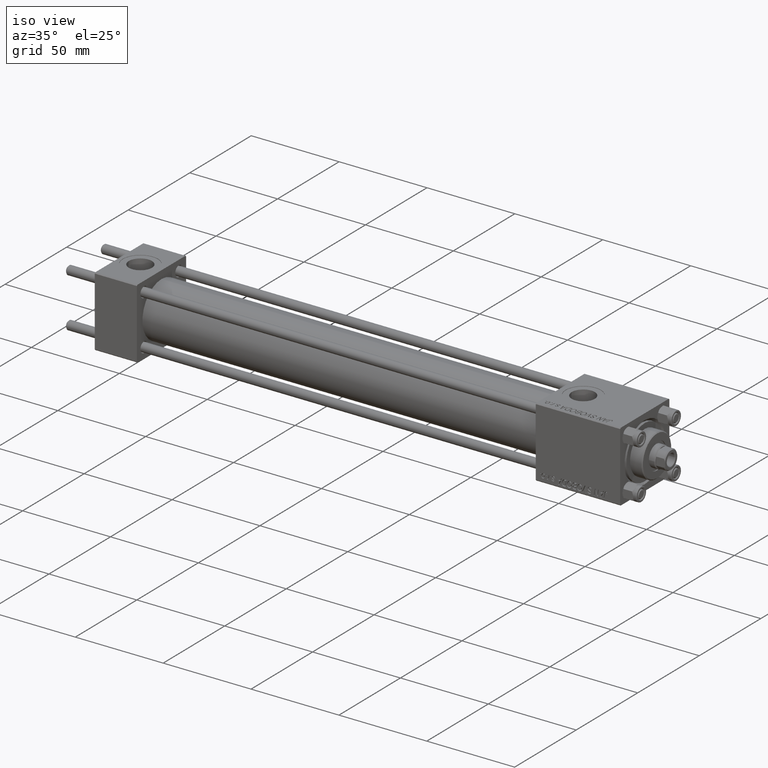
[diagram: clean part render]
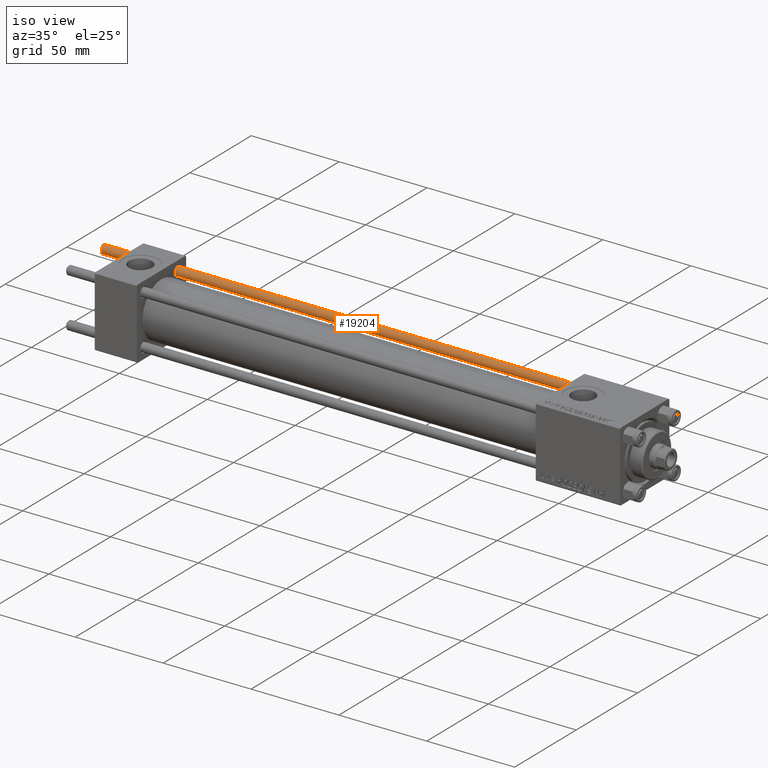
[diagram: same view with one face highlighted and labeled with its STEP entity id]
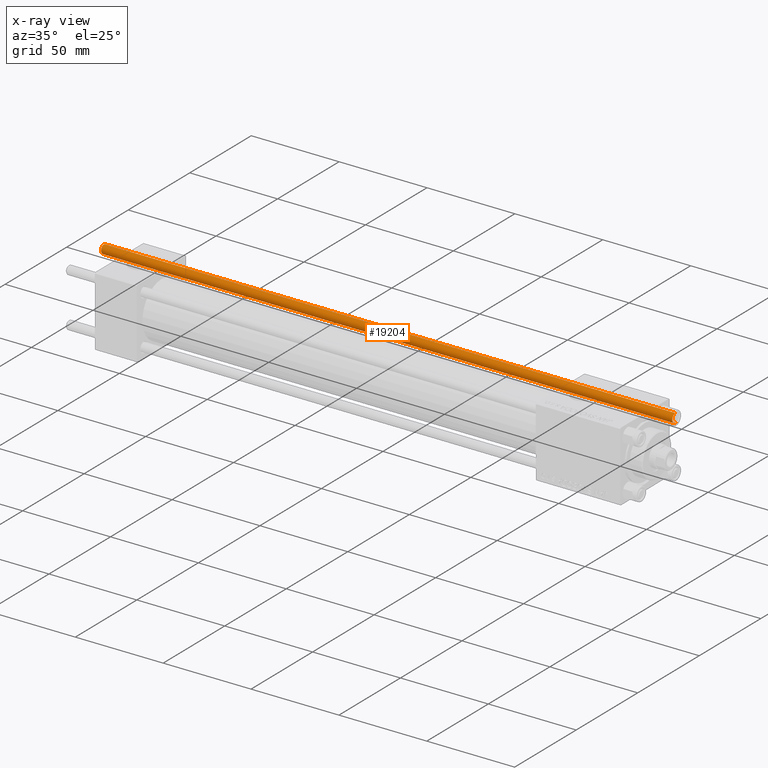
[diagram: x-ray of the same camera — body ghosted, the highlighted face saturated]
A machine part, iso view. The second image highlights one B-rep face of the part: STEP entity #19204.
The next image is the same camera in x-ray: the body ghosted, the highlighted face saturated — about 0% of this face is hidden behind the body in this view.
In plain terms, the highlighted cylindrical surface (edge-blend (fillet) strip) has radius 2.5 mm, axis along (-1, -0, -0).
Its self-contained STEP definition (entity closure, byte-faithful):
#3231 = CARTESIAN_POINT ( 'NONE',  ( 2.500000000000000000, 3.061616997868383141E-16, 0.4999999999999449329 ) ) ;
#7345 = CIRCLE ( 'NONE', #11634, 2.500000000000000000 ) ;
#9390 = DIRECTION ( 'NONE',  ( -0.000000000000000000, -0.000000000000000000, 1.000000000000000000 ) ) ;
#10185 = CARTESIAN_POINT ( 'NONE',  ( 0.000000000000000000, 0.000000000000000000, 0.4999999999999449329 ) ) ;
#10338 = VECTOR ( 'NONE', #19251, 1000.000000000000000 ) ;
#11634 = AXIS2_PLACEMENT_3D ( 'NONE', #10185, #9390, #25686 ) ;
#12517 = EDGE_CURVE ( 'NONE', #15682, #31487, #18698, .T. ) ;
#15682 = VERTEX_POINT ( 'NONE', #41688 ) ;
#16293 = AXIS2_PLACEMENT_3D ( 'NONE', #18193, #34216, #47017 ) ;
#18193 = CARTESIAN_POINT ( 'NONE',  ( 0.000000000000000000, 0.000000000000000000, 326.0000000000000000 ) ) ;
#18698 = CIRCLE ( 'NONE', #40868, 2.500000000000000000 ) ;
#19027 = ORIENTED_EDGE ( 'NONE', *, *, #51570, .F. ) ;
#19204 = ADVANCED_FACE ( 'NONE', ( #47280 ), #42212, .T. ) ;
#19251 = DIRECTION ( 'NONE',  ( -0.000000000000000000, -0.000000000000000000, -1.000000000000000000 ) ) ;
#21953 = DIRECTION ( 'NONE',  ( -0.000000000000000000, -0.000000000000000000, -1.000000000000000000 ) ) ;
#22748 = LINE ( 'NONE', #29689, #30382 ) ;
#24473 = CARTESIAN_POINT ( 'NONE',  ( 0.000000000000000000, 0.000000000000000000, 325.5000000000000000 ) ) ;
#25052 = ORIENTED_EDGE ( 'NONE', *, *, #51574, .T. ) ;
#25686 = DIRECTION ( 'NONE',  ( 1.000000000000000000, 0.000000000000000000, 0.000000000000000000 ) ) ;
#26361 = EDGE_LOOP ( 'NONE', ( #19027, #40341, #51545, #25052 ) ) ;
#27510 = CARTESIAN_POINT ( 'NONE',  ( -2.500000000000000000, 0.000000000000000000, 326.0000000000000000 ) ) ;
#27939 = DIRECTION ( 'NONE',  ( 1.000000000000000000, 0.000000000000000000, 0.000000000000000000 ) ) ;
#28310 = LINE ( 'NONE', #27510, #10338 ) ;
#29689 = CARTESIAN_POINT ( 'NONE',  ( 2.500000000000000000, 3.061616997868383141E-16, 326.0000000000000000 ) ) ;
#30382 = VECTOR ( 'NONE', #21953, 1000.000000000000000 ) ;
#31487 = VERTEX_POINT ( 'NONE', #48128 ) ;
#34216 = DIRECTION ( 'NONE',  ( -0.000000000000000000, -0.000000000000000000, -1.000000000000000000 ) ) ;
#36487 = EDGE_CURVE ( 'NONE', #31487, #47516, #28310, .T. ) ;
#40341 = ORIENTED_EDGE ( 'NONE', *, *, #12517, .T. ) ;
#40868 = AXIS2_PLACEMENT_3D ( 'NONE', #24473, #49012, #27939 ) ;
#41212 = VERTEX_POINT ( 'NONE', #3231 ) ;
#41688 = CARTESIAN_POINT ( 'NONE',  ( 2.500000000000000000, 3.061616997868383141E-16, 325.5000000000000000 ) ) ;
#42212 = CYLINDRICAL_SURFACE ( 'NONE', #16293, 2.500000000000000000 ) ;
#46632 = CARTESIAN_POINT ( 'NONE',  ( -2.500000000000000000, 0.000000000000000000, 0.4999999999999449329 ) ) ;
#47017 = DIRECTION ( 'NONE',  ( -1.000000000000000000, 0.000000000000000000, 0.000000000000000000 ) ) ;
#47280 = FACE_OUTER_BOUND ( 'NONE', #26361, .T. ) ;
#47516 = VERTEX_POINT ( 'NONE', #46632 ) ;
#48128 = CARTESIAN_POINT ( 'NONE',  ( -2.500000000000000000, 0.000000000000000000, 325.5000000000000000 ) ) ;
#49012 = DIRECTION ( 'NONE',  ( 0.000000000000000000, 0.000000000000000000, -1.000000000000000000 ) ) ;
#51545 = ORIENTED_EDGE ( 'NONE', *, *, #36487, .T. ) ;
#51570 = EDGE_CURVE ( 'NONE', #15682, #41212, #22748, .T. ) ;
#51574 = EDGE_CURVE ( 'NONE', #47516, #41212, #7345, .T. ) ;